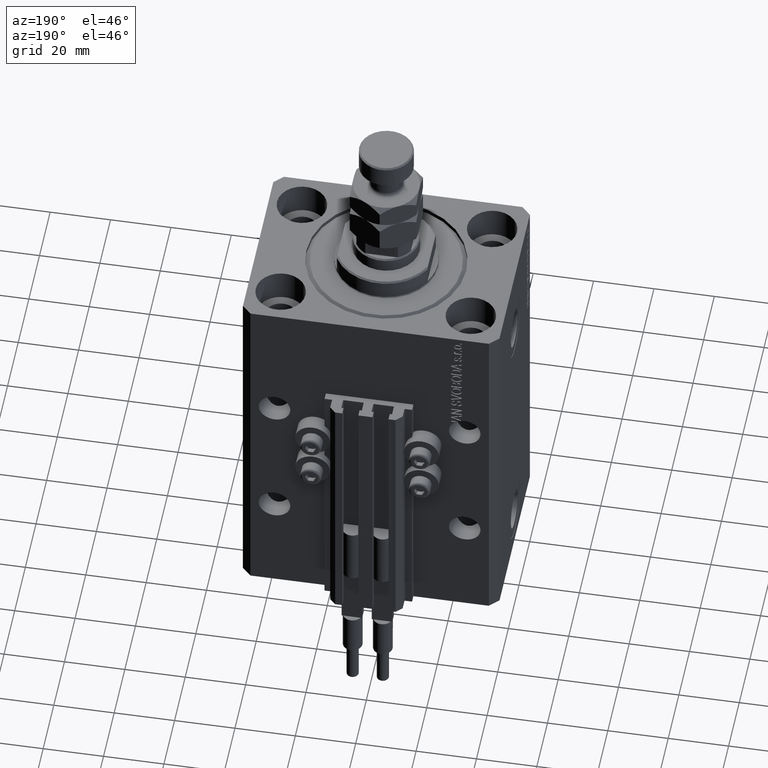
[diagram: clean part render]
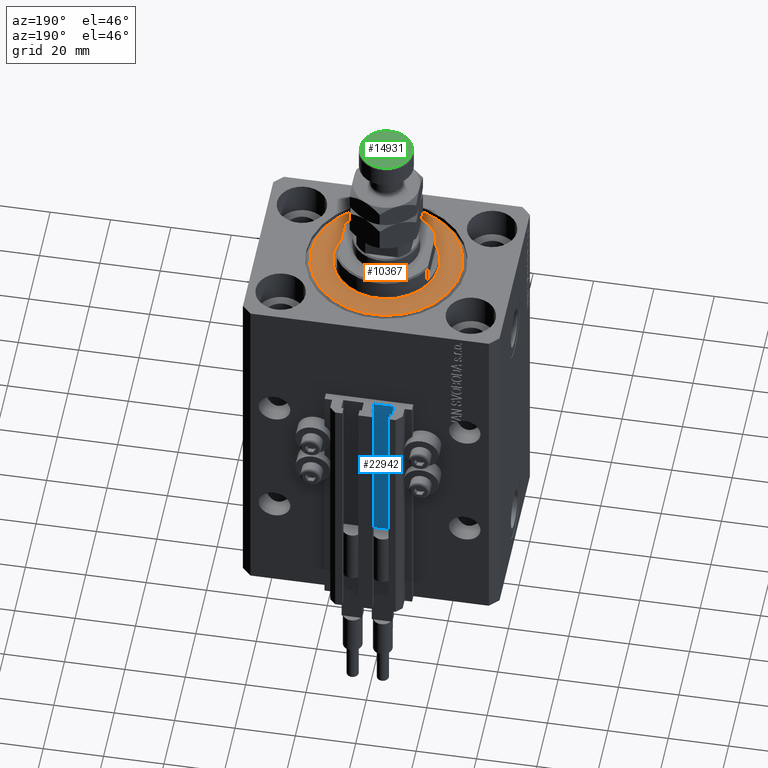
[diagram: same view with three faces highlighted in distinct colors, each labeled with its STEP entity id]
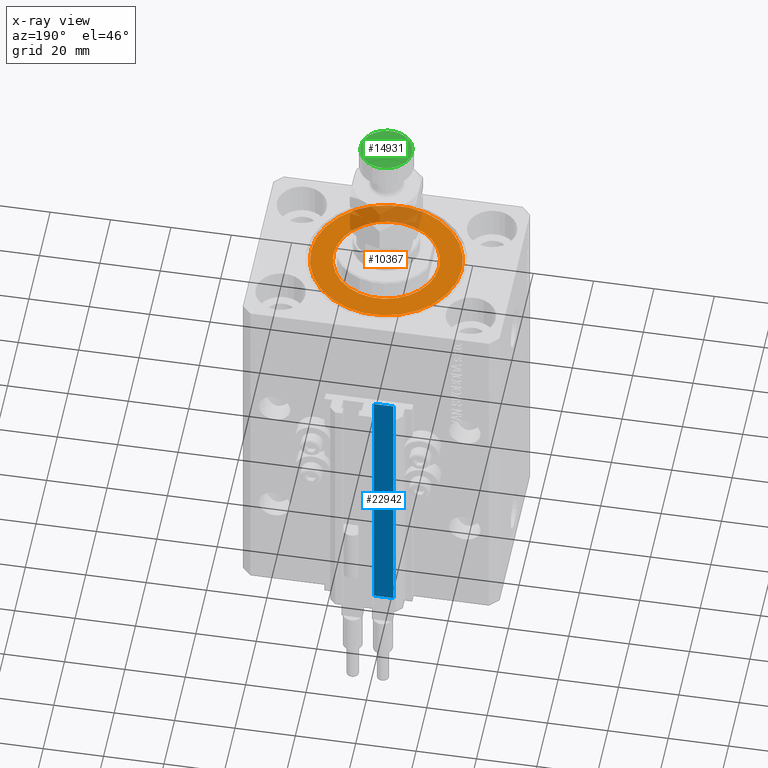
[diagram: x-ray of the same camera — body ghosted, the three highlighted faces saturated]
A machine part, auxiliary view with three faces highlighted in distinct colors.
The next image is the same camera in x-ray (body ghosted, the three faces saturated) — at least one of them is partly hidden behind the body in this view.
Their STEP definitions:

[orange] entity #10367 — the highlighted planar face has unit normal (0, 0, -1).
#2234 = VERTEX_POINT ( 'NONE', #39425 ) ;
#2821 = CARTESIAN_POINT ( 'NONE',  ( 0.000000000000000000, 0.000000000000000000, 0.000000000000000000 ) ) ;
#3212 = DIRECTION ( 'NONE',  ( 1.000000000000000000, 0.000000000000000000, 0.000000000000000000 ) ) ;
#4448 = CIRCLE ( 'NONE', #33047, 24.99999999999998224 ) ;
#6472 = CARTESIAN_POINT ( 'NONE',  ( 0.000000000000000000, 0.000000000000000000, 0.000000000000000000 ) ) ;
#6803 = DIRECTION ( 'NONE',  ( 0.000000000000000000, 0.000000000000000000, 1.000000000000000000 ) ) ;
#6922 = DIRECTION ( 'NONE',  ( 1.000000000000000000, 0.000000000000000000, 0.000000000000000000 ) ) ;
#10367 = ADVANCED_FACE ( 'NONE', ( #28735, #15785 ), #10811, .F. ) ;
#10811 = PLANE ( 'NONE',  #15580 ) ;
#11113 = VERTEX_POINT ( 'NONE', #47984 ) ;
#11416 = CARTESIAN_POINT ( 'NONE',  ( 0.000000000000000000, 0.000000000000000000, 0.000000000000000000 ) ) ;
#13503 = AXIS2_PLACEMENT_3D ( 'NONE', #36128, #43803, #20284 ) ;
#14081 = DIRECTION ( 'NONE',  ( 0.000000000000000000, 0.000000000000000000, 1.000000000000000000 ) ) ;
#15580 = AXIS2_PLACEMENT_3D ( 'NONE', #6472, #37921, #49689 ) ;
#15781 = EDGE_CURVE ( 'NONE', #40207, #43254, #44565, .T. ) ;
#15785 = FACE_OUTER_BOUND ( 'NONE', #19613, .T. ) ;
#15998 = AXIS2_PLACEMENT_3D ( 'NONE', #2821, #14081, #6922 ) ;
#17610 = ORIENTED_EDGE ( 'NONE', *, *, #15781, .T. ) ;
#18991 = ORIENTED_EDGE ( 'NONE', *, *, #45868, .T. ) ;
#19613 = EDGE_LOOP ( 'NONE', ( #48624, #17610 ) ) ;
#20284 = DIRECTION ( 'NONE',  ( 1.000000000000000000, 0.000000000000000000, 0.000000000000000000 ) ) ;
#21681 = CIRCLE ( 'NONE', #15998, 17.50000000000000000 ) ;
#22176 = CARTESIAN_POINT ( 'NONE',  ( 24.99999999999998224, 0.000000000000000000, 0.000000000000000000 ) ) ;
#23378 = ORIENTED_EDGE ( 'NONE', *, *, #44985, .T. ) ;
#24368 = DIRECTION ( 'NONE',  ( 1.000000000000000000, 0.000000000000000000, 0.000000000000000000 ) ) ;
#28735 = FACE_BOUND ( 'NONE', #31773, .T. ) ;
#31773 = EDGE_LOOP ( 'NONE', ( #23378, #18991 ) ) ;
#33047 = AXIS2_PLACEMENT_3D ( 'NONE', #47893, #44323, #24368 ) ;
#33593 = CARTESIAN_POINT ( 'NONE',  ( -24.99999999999998224, 3.153465507804433615E-15, 0.000000000000000000 ) ) ;
#36128 = CARTESIAN_POINT ( 'NONE',  ( 0.000000000000000000, 0.000000000000000000, 0.000000000000000000 ) ) ;
#37921 = DIRECTION ( 'NONE',  ( 0.000000000000000000, 0.000000000000000000, 1.000000000000000000 ) ) ;
#39425 = CARTESIAN_POINT ( 'NONE',  ( 17.50000000000000000, 0.000000000000000000, 2.168404344971008868E-16 ) ) ;
#40207 = VERTEX_POINT ( 'NONE', #33593 ) ;
#42181 = CIRCLE ( 'NONE', #42985, 17.50000000000000000 ) ;
#42985 = AXIS2_PLACEMENT_3D ( 'NONE', #11416, #6803, #3212 ) ;
#43254 = VERTEX_POINT ( 'NONE', #22176 ) ;
#43546 = EDGE_CURVE ( 'NONE', #43254, #40207, #4448, .T. ) ;
#43803 = DIRECTION ( 'NONE',  ( -0.000000000000000000, -0.000000000000000000, -1.000000000000000000 ) ) ;
#44323 = DIRECTION ( 'NONE',  ( -0.000000000000000000, -0.000000000000000000, -1.000000000000000000 ) ) ;
#44565 = CIRCLE ( 'NONE', #13503, 24.99999999999998224 ) ;
#44985 = EDGE_CURVE ( 'NONE', #2234, #11113, #21681, .T. ) ;
#45868 = EDGE_CURVE ( 'NONE', #11113, #2234, #42181, .T. ) ;
#47893 = CARTESIAN_POINT ( 'NONE',  ( 0.000000000000000000, 0.000000000000000000, 0.000000000000000000 ) ) ;
#47984 = CARTESIAN_POINT ( 'NONE',  ( -17.50000000000000000, 2.143131898507868643E-15, 2.168404344971008868E-16 ) ) ;
#48624 = ORIENTED_EDGE ( 'NONE', *, *, #43546, .T. ) ;
#49689 = DIRECTION ( 'NONE',  ( 1.000000000000000000, 0.000000000000000000, -0.000000000000000000 ) ) ;

[blue] entity #22942 — the highlighted planar face has unit normal (0, 1, 0).
#369 = VERTEX_POINT ( 'NONE', #49649 ) ;
#2470 = EDGE_CURVE ( 'NONE', #21894, #19924, #2547, .T. ) ;
#2547 = LINE ( 'NONE', #5885, #42352 ) ;
#4091 = EDGE_CURVE ( 'NONE', #369, #21894, #41743, .T. ) ;
#5885 = CARTESIAN_POINT ( 'NONE',  ( -1.800000000000000933, 33.50000000000000000, -33.00000000000000000 ) ) ;
#5910 = CARTESIAN_POINT ( 'NONE',  ( -8.199999999999997513, 33.50000000000000000, -123.0000000000000000 ) ) ;
#6893 = DIRECTION ( 'NONE',  ( -1.000000000000000000, 0.000000000000000000, 0.000000000000000000 ) ) ;
#7846 = CARTESIAN_POINT ( 'NONE',  ( -1.800000000000000933, 33.50000000000000000, -33.00000000000000000 ) ) ;
#8685 = ORIENTED_EDGE ( 'NONE', *, *, #2470, .F. ) ;
#9602 = AXIS2_PLACEMENT_3D ( 'NONE', #35032, #50131, #22764 ) ;
#10994 = PLANE ( 'NONE',  #9602 ) ;
#13154 = CARTESIAN_POINT ( 'NONE',  ( -1.800000000000000933, 33.50000000000000000, -123.0000000000000000 ) ) ;
#13522 = LINE ( 'NONE', #16861, #16147 ) ;
#16147 = VECTOR ( 'NONE', #48327, 1000.000000000000000 ) ;
#16861 = CARTESIAN_POINT ( 'NONE',  ( -8.199999999999997513, 33.50000000000000000, -123.0000000000000000 ) ) ;
#19924 = VERTEX_POINT ( 'NONE', #28449 ) ;
#21786 = CARTESIAN_POINT ( 'NONE',  ( -1.800000000000000933, 33.50000000000000000, -123.0000000000000000 ) ) ;
#21894 = VERTEX_POINT ( 'NONE', #7846 ) ;
#22764 = DIRECTION ( 'NONE',  ( 0.000000000000000000, 0.000000000000000000, 1.000000000000000000 ) ) ;
#22777 = VECTOR ( 'NONE', #37391, 1000.000000000000000 ) ;
#22942 = ADVANCED_FACE ( 'NONE', ( #50639 ), #10994, .T. ) ;
#24438 = ORIENTED_EDGE ( 'NONE', *, *, #48993, .T. ) ;
#28449 = CARTESIAN_POINT ( 'NONE',  ( -8.199999999999997513, 33.50000000000000000, -33.00000000000000000 ) ) ;
#28685 = ORIENTED_EDGE ( 'NONE', *, *, #4091, .F. ) ;
#32871 = VERTEX_POINT ( 'NONE', #5910 ) ;
#33612 = LINE ( 'NONE', #13154, #43601 ) ;
#35032 = CARTESIAN_POINT ( 'NONE',  ( -1.800000000000000933, 33.50000000000000000, -123.0000000000000000 ) ) ;
#37391 = DIRECTION ( 'NONE',  ( 0.000000000000000000, 0.000000000000000000, 1.000000000000000000 ) ) ;
#41643 = EDGE_CURVE ( 'NONE', #369, #32871, #33612, .T. ) ;
#41743 = LINE ( 'NONE', #21786, #22777 ) ;
#42352 = VECTOR ( 'NONE', #6893, 1000.000000000000000 ) ;
#42855 = ORIENTED_EDGE ( 'NONE', *, *, #41643, .T. ) ;
#43169 = EDGE_LOOP ( 'NONE', ( #8685, #28685, #42855, #24438 ) ) ;
#43601 = VECTOR ( 'NONE', #48695, 1000.000000000000000 ) ;
#48327 = DIRECTION ( 'NONE',  ( 0.000000000000000000, 0.000000000000000000, 1.000000000000000000 ) ) ;
#48695 = DIRECTION ( 'NONE',  ( -1.000000000000000000, 0.000000000000000000, 0.000000000000000000 ) ) ;
#48993 = EDGE_CURVE ( 'NONE', #32871, #19924, #13522, .T. ) ;
#49649 = CARTESIAN_POINT ( 'NONE',  ( -1.800000000000000933, 33.50000000000000000, -123.0000000000000000 ) ) ;
#50131 = DIRECTION ( 'NONE',  ( 0.000000000000000000, 1.000000000000000000, -0.000000000000000000 ) ) ;
#50639 = FACE_OUTER_BOUND ( 'NONE', #43169, .T. ) ;

[green] entity #14931 — the highlighted planar face has unit normal (0, 0, 1).
#133 = EDGE_CURVE ( 'NONE', #32490, #20922, #3000, .T. ) ;
#824 = CARTESIAN_POINT ( 'NONE',  ( 0.000000000000000000, 0.000000000000000000, 35.00000000000000000 ) ) ;
#1085 = CARTESIAN_POINT ( 'NONE',  ( 8.499999999999992895, 1.071565949253933532E-15, 35.00000000000000000 ) ) ;
#3000 = CIRCLE ( 'NONE', #43083, 8.499999999999992895 ) ;
#3379 = ORIENTED_EDGE ( 'NONE', *, *, #29441, .T. ) ;
#8435 = DIRECTION ( 'NONE',  ( 1.000000000000000000, 0.000000000000000000, 0.000000000000000000 ) ) ;
#14931 = ADVANCED_FACE ( 'NONE', ( #44051 ), #40208, .T. ) ;
#16432 = DIRECTION ( 'NONE',  ( 1.000000000000000000, 0.000000000000000000, -0.000000000000000000 ) ) ;
#20016 = DIRECTION ( 'NONE',  ( 0.000000000000000000, 0.000000000000000000, 1.000000000000000000 ) ) ;
#20922 = VERTEX_POINT ( 'NONE', #1085 ) ;
#22875 = ORIENTED_EDGE ( 'NONE', *, *, #133, .T. ) ;
#24527 = CIRCLE ( 'NONE', #40061, 8.499999999999992895 ) ;
#27636 = DIRECTION ( 'NONE',  ( 0.000000000000000000, 0.000000000000000000, 1.000000000000000000 ) ) ;
#28945 = DIRECTION ( 'NONE',  ( 0.000000000000000000, 0.000000000000000000, 1.000000000000000000 ) ) ;
#29441 = EDGE_CURVE ( 'NONE', #20922, #32490, #24527, .T. ) ;
#32490 = VERTEX_POINT ( 'NONE', #49058 ) ;
#32785 = DIRECTION ( 'NONE',  ( 1.000000000000000000, 0.000000000000000000, 0.000000000000000000 ) ) ;
#35022 = EDGE_LOOP ( 'NONE', ( #22875, #3379 ) ) ;
#40061 = AXIS2_PLACEMENT_3D ( 'NONE', #43485, #27636, #8435 ) ;
#40208 = PLANE ( 'NONE',  #44523 ) ;
#43083 = AXIS2_PLACEMENT_3D ( 'NONE', #46897, #28945, #32785 ) ;
#43485 = CARTESIAN_POINT ( 'NONE',  ( 0.000000000000000000, 0.000000000000000000, 35.00000000000000000 ) ) ;
#44051 = FACE_OUTER_BOUND ( 'NONE', #35022, .T. ) ;
#44523 = AXIS2_PLACEMENT_3D ( 'NONE', #824, #20016, #16432 ) ;
#46897 = CARTESIAN_POINT ( 'NONE',  ( 0.000000000000000000, 0.000000000000000000, 35.00000000000000000 ) ) ;
#49058 = CARTESIAN_POINT ( 'NONE',  ( -8.499999999999992895, 0.000000000000000000, 35.00000000000000000 ) ) ;